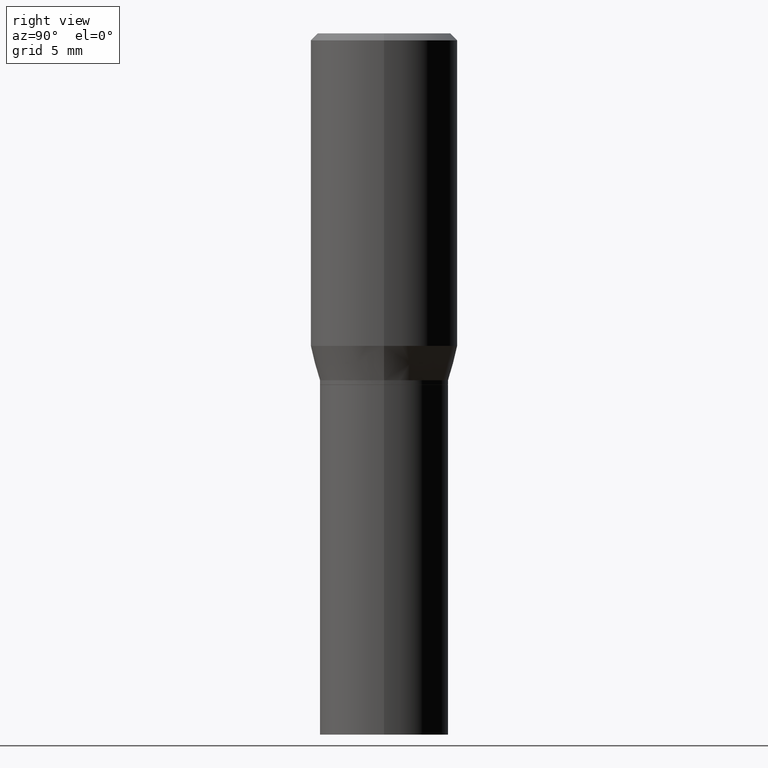
[diagram: clean part render]
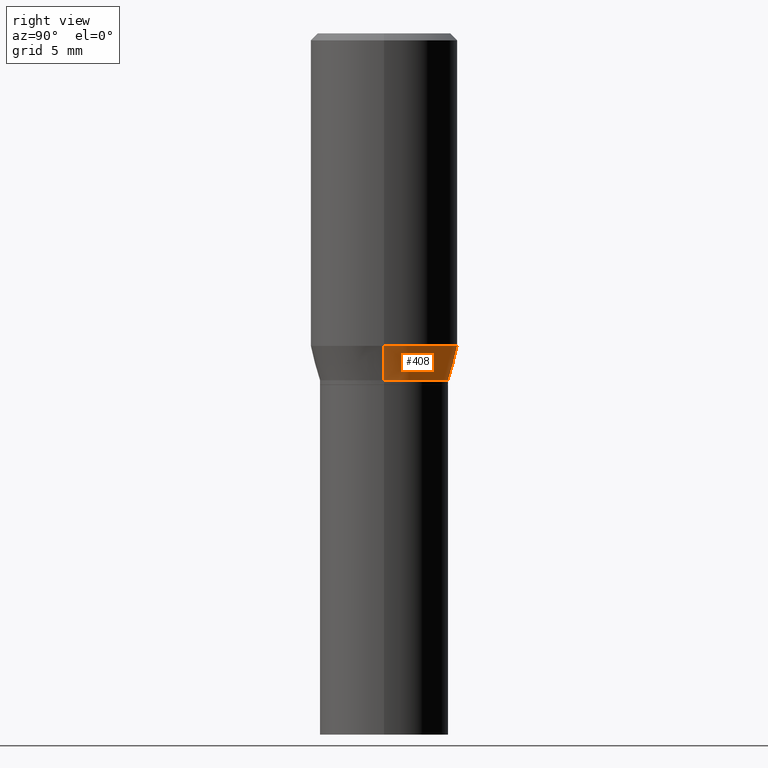
[diagram: same view with one face highlighted and labeled with its STEP entity id]
A machine part, right view. The second image highlights one B-rep face of the part: STEP entity #408.
In plain terms, the highlighted conical surface has half-angle 15 deg.
Its self-contained STEP definition (entity closure, byte-faithful):
#9 = AXIS2_PLACEMENT_3D ( 'NONE', #370, #215, #11 ) ;
#11 = DIRECTION ( 'NONE',  ( 1.000000000000000000, -6.982962677686267499E-15, 0.000000000000000000 ) ) ;
#16 = DIRECTION ( 'NONE',  ( 1.000000000000000000, -6.982962677686267499E-15, 0.000000000000000000 ) ) ;
#39 = VECTOR ( 'NONE', #163, 39.37007874015748143 ) ;
#42 = VERTEX_POINT ( 'NONE', #435 ) ;
#46 = DIRECTION ( 'NONE',  ( -0.2588190451025222938, 5.211531920934555775E-15, 0.9659258262890678681 ) ) ;
#63 = EDGE_CURVE ( 'NONE', #100, #42, #442, .T. ) ;
#77 = VECTOR ( 'NONE', #46, 39.37007874015748143 ) ;
#90 = CARTESIAN_POINT ( 'NONE',  ( 1.814537854189371548E-29, -2.590679153421614242E-15, -0.7420000000000002149 ) ) ;
#100 = VERTEX_POINT ( 'NONE', #178 ) ;
#109 = CARTESIAN_POINT ( 'NONE',  ( -0.1377999999999999781, -1.413213504431950829E-15, -0.7420000000000002149 ) ) ;
#130 = EDGE_LOOP ( 'NONE', ( #400, #285, #150, #222 ) ) ;
#150 = ORIENTED_EDGE ( 'NONE', *, *, #63, .F. ) ;
#163 = DIRECTION ( 'NONE',  ( 0.2588190451025222938, 1.565188264969614671E-15, 0.9659258262890678681 ) ) ;
#174 = LINE ( 'NONE', #252, #77 ) ;
#178 = CARTESIAN_POINT ( 'NONE',  ( 0.1575000000000000289, -3.433797175877450400E-15, -0.6684785990908935771 ) ) ;
#180 = DIRECTION ( 'NONE',  ( -2.445468806185136597E-29, 3.491481338843145583E-15, 1.000000000000000000 ) ) ;
#192 = EDGE_CURVE ( 'NONE', #304, #100, #324, .T. ) ;
#202 = VERTEX_POINT ( 'NONE', #109 ) ;
#205 = EDGE_CURVE ( 'NONE', #202, #42, #174, .T. ) ;
#206 = AXIS2_PLACEMENT_3D ( 'NONE', #374, #180, #16 ) ;
#215 = DIRECTION ( 'NONE',  ( -2.445468806185136597E-29, 3.491481338843145583E-15, 1.000000000000000000 ) ) ;
#217 = CONICAL_SURFACE ( 'NONE', #298, 0.1377999999999999781, 0.2617993877991510177 ) ;
#222 = ORIENTED_EDGE ( 'NONE', *, *, #192, .F. ) ;
#226 = FACE_OUTER_BOUND ( 'NONE', #130, .T. ) ;
#252 = CARTESIAN_POINT ( 'NONE',  ( -0.1377999999999999781, -1.611551263544196737E-15, -0.7420000000000002149 ) ) ;
#264 = EDGE_CURVE ( 'NONE', #304, #202, #303, .T. ) ;
#285 = ORIENTED_EDGE ( 'NONE', *, *, #205, .T. ) ;
#298 = AXIS2_PLACEMENT_3D ( 'NONE', #90, #384, #382 ) ;
#303 = CIRCLE ( 'NONE', #9, 0.1377999999999999781 ) ;
#304 = VERTEX_POINT ( 'NONE', #331 ) ;
#324 = LINE ( 'NONE', #439, #39 ) ;
#331 = CARTESIAN_POINT ( 'NONE',  ( 0.1377999999999999781, -3.552931410406782114E-15, -0.7420000000000002149 ) ) ;
#370 = CARTESIAN_POINT ( 'NONE',  ( 1.814537854189371548E-29, -2.590679153421614242E-15, -0.7420000000000002149 ) ) ;
#374 = CARTESIAN_POINT ( 'NONE',  ( 1.634743561679119835E-29, -2.333980554141863708E-15, -0.6684785990908935771 ) ) ;
#382 = DIRECTION ( 'NONE',  ( 1.000000000000000000, -6.982962677686267499E-15, 0.000000000000000000 ) ) ;
#384 = DIRECTION ( 'NONE',  ( -2.445468806185136597E-29, 3.491481338843145583E-15, 1.000000000000000000 ) ) ;
#400 = ORIENTED_EDGE ( 'NONE', *, *, #264, .T. ) ;
#408 = ADVANCED_FACE ( 'NONE', ( #226 ), #217, .T. ) ;
#435 = CARTESIAN_POINT ( 'NONE',  ( -0.1575000000000000289, -1.214875745319705316E-15, -0.6684785990908935771 ) ) ;
#439 = CARTESIAN_POINT ( 'NONE',  ( 0.1377999999999999781, -3.552931410406782114E-15, -0.7420000000000002149 ) ) ;
#442 = CIRCLE ( 'NONE', #206, 0.1575000000000000289 ) ;